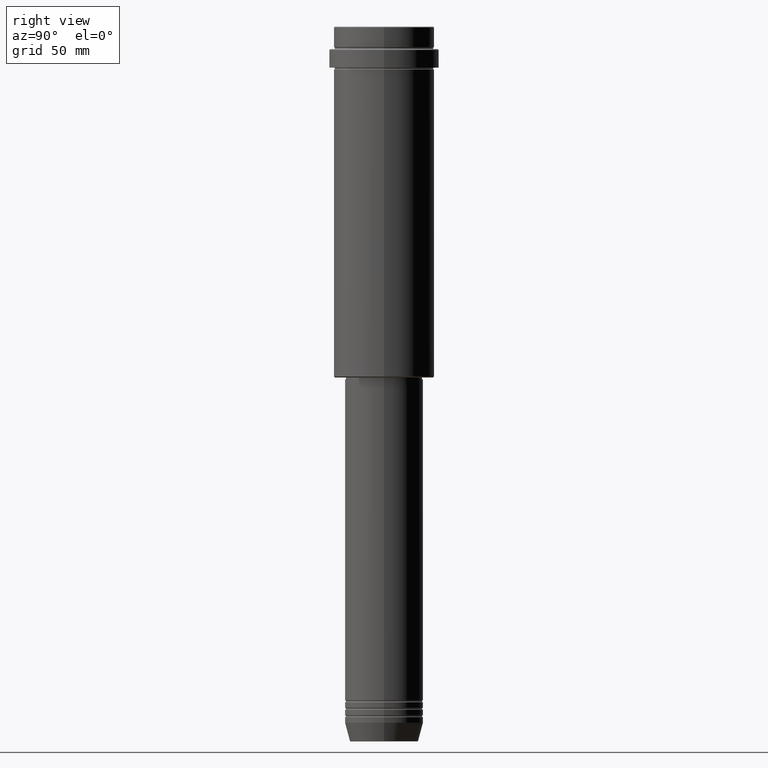
[diagram: clean part render]
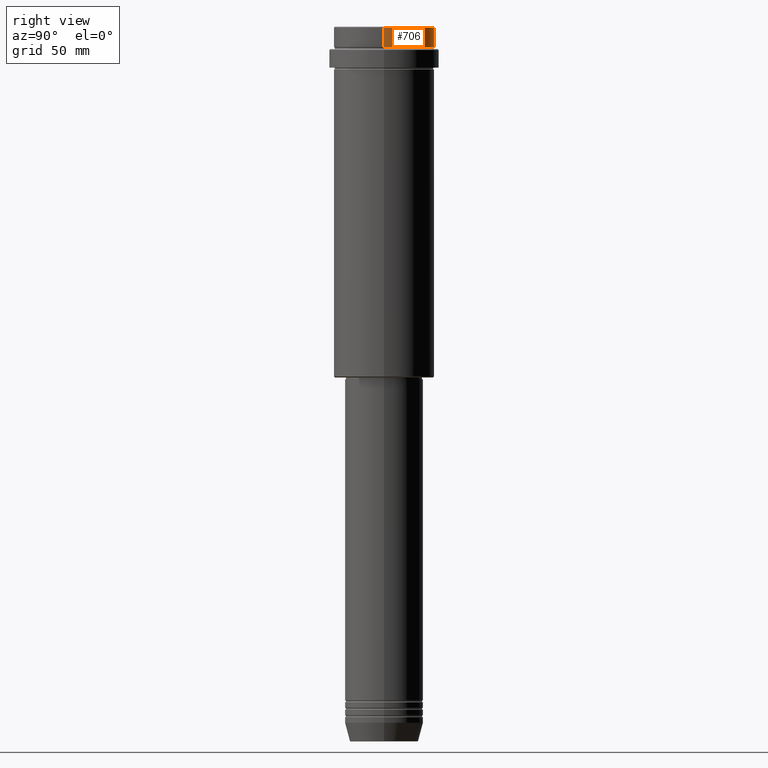
[diagram: same view with one face highlighted and labeled with its STEP entity id]
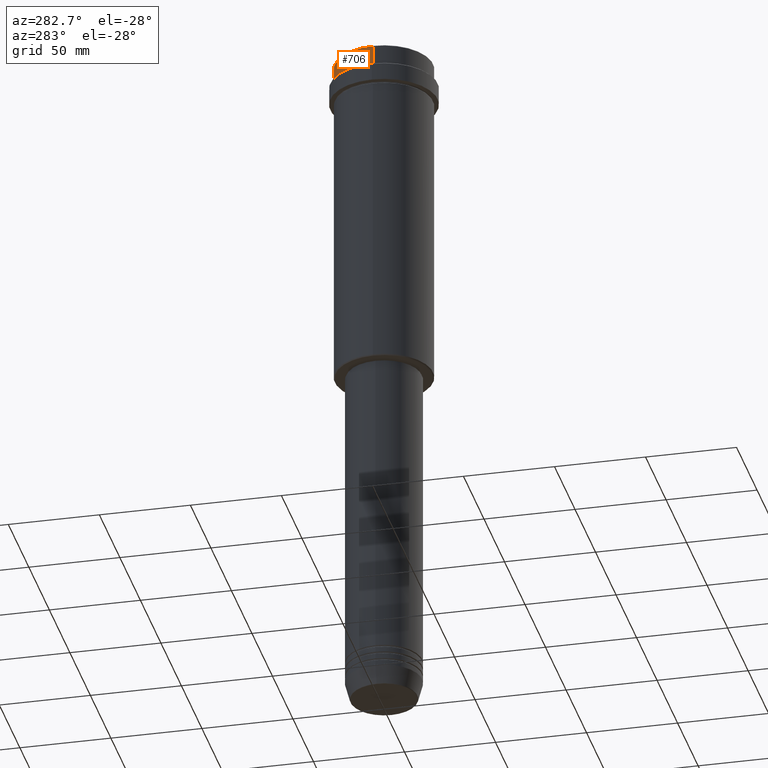
[diagram: same view with one face highlighted and labeled with its STEP entity id]
A machine part, right view. The second image highlights one B-rep face of the part: STEP entity #706.
A second angle (auxiliary view) of the same face is appended — the face is thin or edge-on in the first view.
In plain terms, the highlighted cylindrical surface (partial cylindrical patch) has radius 27 mm, axis along (-0, -0, 1).
Its self-contained STEP definition (entity closure, byte-faithful):
#75 = EDGE_LOOP ( 'NONE', ( #989, #214, #548, #1389 ) ) ;
#96 = CARTESIAN_POINT ( 'NONE',  ( -27.00000000000000355, 3.306546357697854128E-15, 0.000000000000000000 ) ) ;
#105 = CARTESIAN_POINT ( 'NONE',  ( 0.000000000000000000, 0.000000000000000000, -0.5000000000000350830 ) ) ;
#132 = VERTEX_POINT ( 'NONE', #514 ) ;
#147 = CARTESIAN_POINT ( 'NONE',  ( 27.00000000000000355, 0.000000000000000000, -0.5000000000000350830 ) ) ;
#197 = CARTESIAN_POINT ( 'NONE',  ( 0.000000000000000000, 0.000000000000000000, 0.000000000000000000 ) ) ;
#214 = ORIENTED_EDGE ( 'NONE', *, *, #693, .T. ) ;
#221 = CYLINDRICAL_SURFACE ( 'NONE', #407, 27.00000000000000355 ) ;
#235 = DIRECTION ( 'NONE',  ( -0.000000000000000000, -0.000000000000000000, 1.000000000000000000 ) ) ;
#253 = EDGE_CURVE ( 'NONE', #487, #448, #1288, .T. ) ;
#276 = EDGE_CURVE ( 'NONE', #991, #448, #707, .T. ) ;
#382 = VECTOR ( 'NONE', #1092, 1000.000000000000000 ) ;
#407 = AXIS2_PLACEMENT_3D ( 'NONE', #197, #1081, #1281 ) ;
#448 = VERTEX_POINT ( 'NONE', #147 ) ;
#487 = VERTEX_POINT ( 'NONE', #1155 ) ;
#501 = CIRCLE ( 'NONE', #617, 27.00000000000000355 ) ;
#514 = CARTESIAN_POINT ( 'NONE',  ( -27.00000000000000355, 3.306546357697854128E-15, -11.00000000000000178 ) ) ;
#548 = ORIENTED_EDGE ( 'NONE', *, *, #276, .T. ) ;
#551 = DIRECTION ( 'NONE',  ( 0.000000000000000000, 0.000000000000000000, -1.000000000000000000 ) ) ;
#572 = AXIS2_PLACEMENT_3D ( 'NONE', #105, #551, #1297 ) ;
#598 = CARTESIAN_POINT ( 'NONE',  ( -27.00000000000000355, 3.306546357697854128E-15, -0.5000000000000350830 ) ) ;
#617 = AXIS2_PLACEMENT_3D ( 'NONE', #1096, #235, #992 ) ;
#632 = LINE ( 'NONE', #96, #853 ) ;
#693 = EDGE_CURVE ( 'NONE', #132, #991, #632, .T. ) ;
#706 = ADVANCED_FACE ( 'NONE', ( #859 ), #221, .T. ) ;
#707 = CIRCLE ( 'NONE', #572, 27.00000000000000355 ) ;
#834 = EDGE_CURVE ( 'NONE', #487, #132, #501, .T. ) ;
#853 = VECTOR ( 'NONE', #1060, 1000.000000000000000 ) ;
#859 = FACE_OUTER_BOUND ( 'NONE', #75, .T. ) ;
#989 = ORIENTED_EDGE ( 'NONE', *, *, #834, .T. ) ;
#991 = VERTEX_POINT ( 'NONE', #598 ) ;
#992 = DIRECTION ( 'NONE',  ( 1.000000000000000000, 0.000000000000000000, 0.000000000000000000 ) ) ;
#1060 = DIRECTION ( 'NONE',  ( -0.000000000000000000, -0.000000000000000000, 1.000000000000000000 ) ) ;
#1081 = DIRECTION ( 'NONE',  ( -0.000000000000000000, -0.000000000000000000, 1.000000000000000000 ) ) ;
#1092 = DIRECTION ( 'NONE',  ( -0.000000000000000000, -0.000000000000000000, 1.000000000000000000 ) ) ;
#1096 = CARTESIAN_POINT ( 'NONE',  ( 0.000000000000000000, 0.000000000000000000, -11.00000000000000178 ) ) ;
#1155 = CARTESIAN_POINT ( 'NONE',  ( 27.00000000000000355, 0.000000000000000000, -11.00000000000000178 ) ) ;
#1281 = DIRECTION ( 'NONE',  ( 1.000000000000000000, 0.000000000000000000, 0.000000000000000000 ) ) ;
#1283 = CARTESIAN_POINT ( 'NONE',  ( 27.00000000000000355, 0.000000000000000000, 0.000000000000000000 ) ) ;
#1288 = LINE ( 'NONE', #1283, #382 ) ;
#1297 = DIRECTION ( 'NONE',  ( 1.000000000000000000, 0.000000000000000000, 0.000000000000000000 ) ) ;
#1389 = ORIENTED_EDGE ( 'NONE', *, *, #253, .F. ) ;